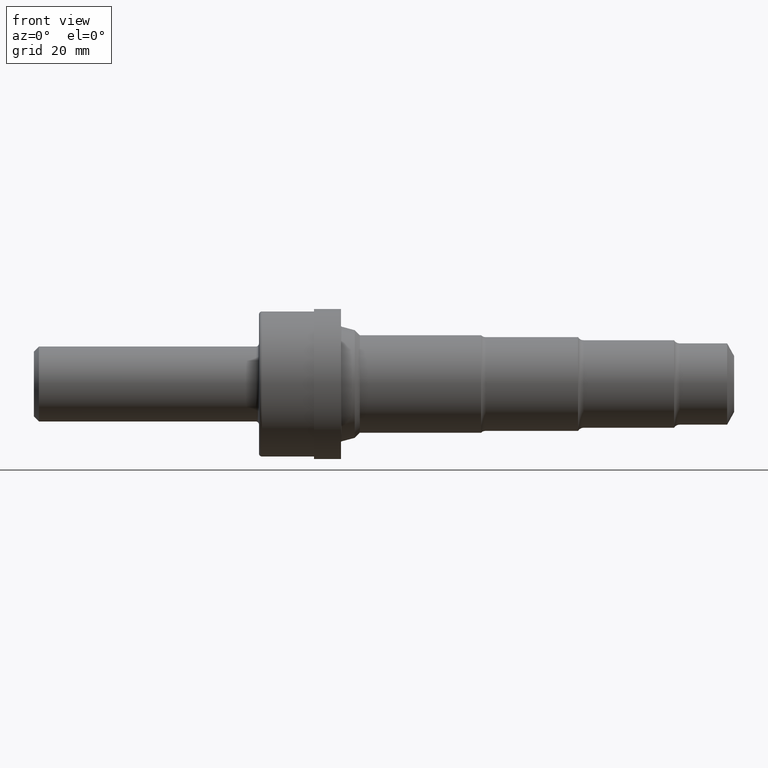
[diagram: clean part render]
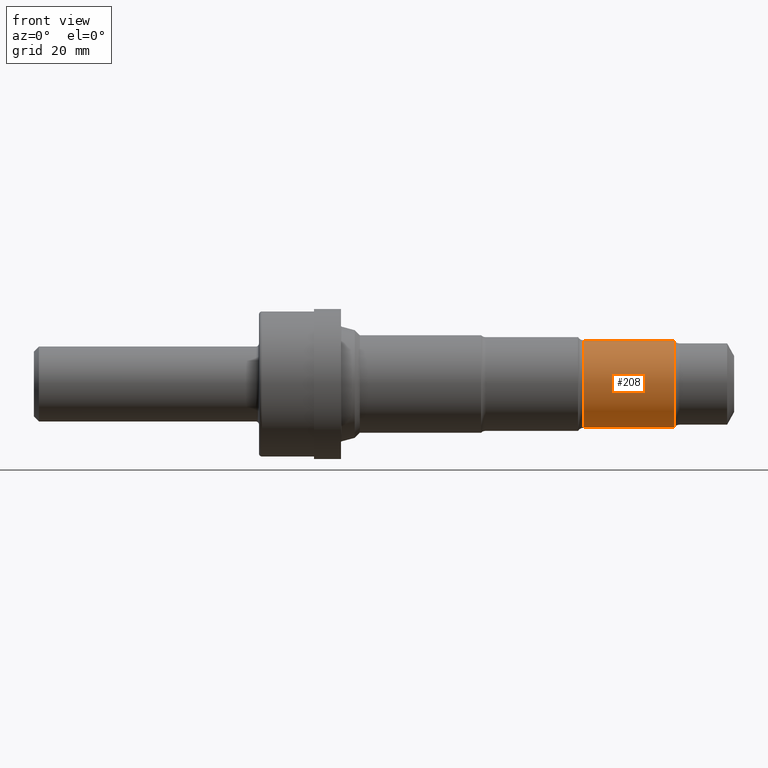
[diagram: same view with one face highlighted and labeled with its STEP entity id]
A machine part, front view. The second image highlights one B-rep face of the part: STEP entity #208.
In plain terms, the highlighted cylindrical surface (partial cylindrical patch) has radius 11.1227 mm, axis along (-1, -0, -0).
Its self-contained STEP definition (entity closure, byte-faithful):
#10 = EDGE_CURVE ( 'NONE', #241, #195, #15, .T. ) ;
#15 = LINE ( 'NONE', #398, #855 ) ;
#62 = AXIS2_PLACEMENT_3D ( 'NONE', #228, #643, #945 ) ;
#91 = AXIS2_PLACEMENT_3D ( 'NONE', #610, #376, #964 ) ;
#153 = AXIS2_PLACEMENT_3D ( 'NONE', #799, #812, #407 ) ;
#195 = VERTEX_POINT ( 'NONE', #997 ) ;
#206 = CIRCLE ( 'NONE', #62, 0.4379000000000000115 ) ;
#208 = ADVANCED_FACE ( 'NONE', ( #498 ), #468, .T. ) ;
#228 = CARTESIAN_POINT ( 'NONE',  ( 6.399999999999999467, 0.0000000000000000000, 0.0000000000000000000 ) ) ;
#241 = VERTEX_POINT ( 'NONE', #714 ) ;
#252 = DIRECTION ( 'NONE',  ( -1.000000000000000000, -0.0000000000000000000, -0.0000000000000000000 ) ) ;
#253 = LINE ( 'NONE', #688, #875 ) ;
#360 = ORIENTED_EDGE ( 'NONE', *, *, #562, .F. ) ;
#367 = CARTESIAN_POINT ( 'NONE',  ( 6.399999999999999467, 5.362728333466260515E-17, -0.4379000000000000115 ) ) ;
#376 = DIRECTION ( 'NONE',  ( -1.000000000000000000, -0.0000000000000000000, -0.0000000000000000000 ) ) ;
#398 = CARTESIAN_POINT ( 'NONE',  ( 0.0000000000000000000, 0.0000000000000000000, 0.4378999999999999004 ) ) ;
#407 = DIRECTION ( 'NONE',  ( 0.0000000000000000000, 0.0000000000000000000, 1.000000000000000000 ) ) ;
#451 = ORIENTED_EDGE ( 'NONE', *, *, #815, .F. ) ;
#468 = CYLINDRICAL_SURFACE ( 'NONE', #91, 0.4378999999999999004 ) ;
#498 = FACE_OUTER_BOUND ( 'NONE', #704, .T. ) ;
#562 = EDGE_CURVE ( 'NONE', #693, #886, #253, .T. ) ;
#608 = CIRCLE ( 'NONE', #153, 0.4378999999999998449 ) ;
#610 = CARTESIAN_POINT ( 'NONE',  ( 0.0000000000000000000, 0.0000000000000000000, 0.0000000000000000000 ) ) ;
#614 = ORIENTED_EDGE ( 'NONE', *, *, #977, .T. ) ;
#643 = DIRECTION ( 'NONE',  ( -1.000000000000000000, -0.0000000000000000000, -0.0000000000000000000 ) ) ;
#688 = CARTESIAN_POINT ( 'NONE',  ( 0.0000000000000000000, 5.362728333466258666E-17, -0.4378999999999999004 ) ) ;
#693 = VERTEX_POINT ( 'NONE', #367 ) ;
#704 = EDGE_LOOP ( 'NONE', ( #360, #614, #825, #451 ) ) ;
#714 = CARTESIAN_POINT ( 'NONE',  ( 6.399999999999999467, 0.0000000000000000000, 0.4379000000000000115 ) ) ;
#799 = CARTESIAN_POINT ( 'NONE',  ( 5.493693575034635401, 0.0000000000000000000, 0.0000000000000000000 ) ) ;
#812 = DIRECTION ( 'NONE',  ( -1.000000000000000000, -0.0000000000000000000, -0.0000000000000000000 ) ) ;
#815 = EDGE_CURVE ( 'NONE', #886, #195, #608, .T. ) ;
#825 = ORIENTED_EDGE ( 'NONE', *, *, #10, .T. ) ;
#841 = DIRECTION ( 'NONE',  ( -1.000000000000000000, -0.0000000000000000000, -0.0000000000000000000 ) ) ;
#855 = VECTOR ( 'NONE', #252, 39.37007874015748143 ) ;
#875 = VECTOR ( 'NONE', #841, 39.37007874015748143 ) ;
#886 = VERTEX_POINT ( 'NONE', #967 ) ;
#945 = DIRECTION ( 'NONE',  ( 0.0000000000000000000, 0.0000000000000000000, 1.000000000000000000 ) ) ;
#964 = DIRECTION ( 'NONE',  ( 0.0000000000000000000, 0.0000000000000000000, 1.000000000000000000 ) ) ;
#967 = CARTESIAN_POINT ( 'NONE',  ( 5.493693575034635401, 5.552548587334099226E-17, -0.4378999999999998449 ) ) ;
#977 = EDGE_CURVE ( 'NONE', #693, #241, #206, .T. ) ;
#997 = CARTESIAN_POINT ( 'NONE',  ( 5.493693575034635401, 0.0000000000000000000, 0.4378999999999998449 ) ) ;